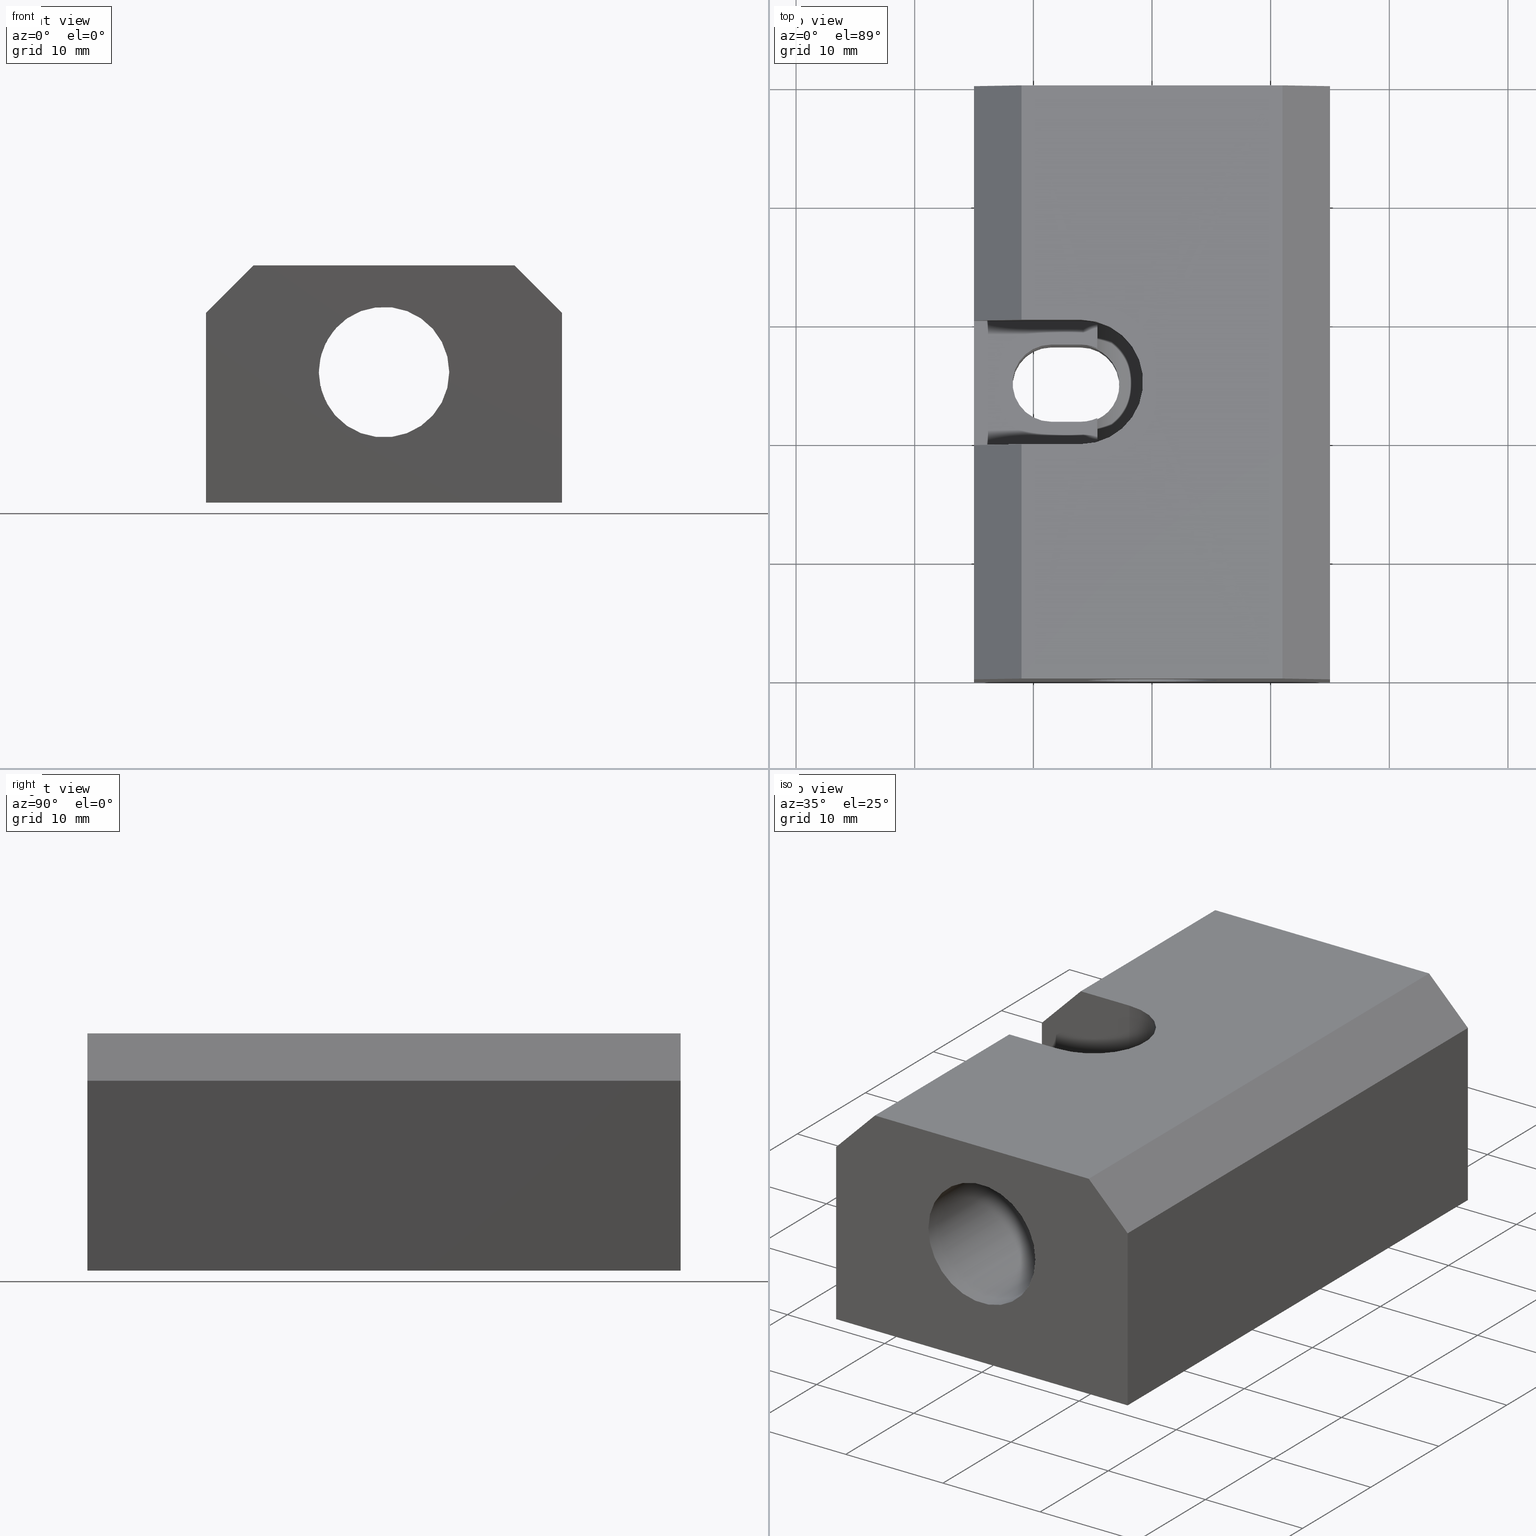
[diagram: canonical four-view strip — front | top / right | iso, engineering-drawing reading convention]
A machine part, canonical four-view strip (front | top / right | iso — engineering-drawing reading convention). The complete STEP part file that produces these views, byte-faithful:
ISO-10303-21;
HEADER;
/****************************************************************
 * Generated by software with PDE/Lib inside                    *
 * PDElib Version v4.4, created Mon 02/23/2004                  *
 * International Technegroup Inc. (www.iti-oh.com)              *
 ****************************************************************/
FILE_DESCRIPTION(('STEP AP203'),'2;1');
FILE_NAME('70PS00062.stp','2011-06-06T18:23:34',(''),(''),'2009.3.110','THINKDESIGN','');
FILE_SCHEMA(('CONFIG_CONTROL_DESIGN'));
ENDSEC;
DATA;
#2=CARTESIAN_POINT('',(14.999999999940201,1.541878E-012,0.0));
#3=DIRECTION('',(1.0,0.0,0.0));
#4=DIRECTION('',(0.0,-0.000000025809719,1.000000000000000));
#5=AXIS2_PLACEMENT_3D('',#2,#3,#4);
#6=PLANE('',#5);
#7=CARTESIAN_POINT('',(14.999999999940201,1.541878E-012,0.0));
#8=VERTEX_POINT('',#7);
#9=CARTESIAN_POINT('',(14.999999999939746,-0.000000412953966,15.999999999936193));
#10=VERTEX_POINT('',#9);
#11=CARTESIAN_POINT('',(14.999999999940201,1.541878E-012,0.0));
#12=DIRECTION('',(-2.842171E-014,-0.000000025809719,1.000000000000000));
#13=VECTOR('',#12,15.999999999936197);
#14=LINE('',#11,#13);
#15=EDGE_CURVE('',#8,#10,#14,.T.);
#16=ORIENTED_EDGE('',*,*,#15,.T.);
#17=CARTESIAN_POINT('',(14.999999999939746,-50.000000412953952,15.999998709457714));
#18=VERTEX_POINT('',#17);
#19=CARTESIAN_POINT('',(14.999999999939746,-0.000000412953966,15.999999999936193));
#20=DIRECTION('',(0.0,-1.000000000000000,-0.000000025809570));
#21=VECTOR('',#20,50.000000000000007);
#22=LINE('',#19,#21);
#23=EDGE_CURVE('',#10,#18,#22,.T.);
#24=ORIENTED_EDGE('',*,*,#23,.T.);
#25=CARTESIAN_POINT('',(14.999999999940201,-49.999999999998444,-0.000001290478480));
#26=VERTEX_POINT('',#25);
#27=CARTESIAN_POINT('',(14.999999999940201,-49.999999999998444,-0.000001290478480));
#28=DIRECTION('',(-2.842171E-014,-0.000000025809719,1.000000000000000));
#29=VECTOR('',#28,15.999999999936197);
#30=LINE('',#27,#29);
#31=EDGE_CURVE('',#26,#18,#30,.T.);
#32=ORIENTED_EDGE('',*,*,#31,.F.);
#33=CARTESIAN_POINT('',(14.999999999940201,1.541878E-012,0.0));
#34=DIRECTION('',(0.0,-1.000000000000000,-0.000000025809570));
#35=VECTOR('',#34,50.000000000000007);
#36=LINE('',#33,#35);
#37=EDGE_CURVE('',#8,#26,#36,.T.);
#38=ORIENTED_EDGE('',*,*,#37,.F.);
#39=EDGE_LOOP('',(#16,#24,#32,#38));
#40=FACE_OUTER_BOUND('',#39,.T.);
#41=ADVANCED_FACE('',(#40),#6,.T.);
#42=CARTESIAN_POINT('',(14.999999999939746,-0.000000412953966,15.999999999936193));
#43=DIRECTION('',(0.707106781186507,-0.000000018250122,0.707106781186588));
#44=DIRECTION('',(-0.707106781186588,-0.000000018250172,0.707106781186507));
#45=AXIS2_PLACEMENT_3D('',#42,#43,#44);
#46=PLANE('',#45);
#47=CARTESIAN_POINT('',(10.999999999955662,-0.000000516189850,19.999999999920746));
#48=VERTEX_POINT('',#47);
#49=CARTESIAN_POINT('',(14.999999999939746,-0.000000412953966,15.999999999936193));
#50=DIRECTION('',(-0.707106781186588,-0.000000018250172,0.707106781186507));
#51=VECTOR('',#50,5.656854249469551);
#52=LINE('',#49,#51);
#53=EDGE_CURVE('',#10,#48,#52,.T.);
#54=ORIENTED_EDGE('',*,*,#53,.T.);
#55=CARTESIAN_POINT('',(10.999999999955662,-50.000000516189836,19.999998709442266));
#56=VERTEX_POINT('',#55);
#57=CARTESIAN_POINT('',(10.999999999955662,-0.000000516189850,19.999999999920746));
#58=DIRECTION('',(0.0,-1.000000000000000,-0.000000025809569));
#59=VECTOR('',#58,50.000000000000007);
#60=LINE('',#57,#59);
#61=EDGE_CURVE('',#48,#56,#60,.T.);
#62=ORIENTED_EDGE('',*,*,#61,.T.);
#63=CARTESIAN_POINT('',(14.999999999939746,-50.000000412953952,15.999998709457714));
#64=DIRECTION('',(-0.707106781186588,-0.000000018250172,0.707106781186507));
#65=VECTOR('',#64,5.656854249469549);
#66=LINE('',#63,#65);
#67=EDGE_CURVE('',#18,#56,#66,.T.);
#68=ORIENTED_EDGE('',*,*,#67,.F.);
#69=ORIENTED_EDGE('',*,*,#23,.F.);
#70=EDGE_LOOP('',(#54,#62,#68,#69));
#71=FACE_OUTER_BOUND('',#70,.T.);
#72=ADVANCED_FACE('',(#71),#46,.T.);
#73=CARTESIAN_POINT('',(10.999999999955662,-0.000000516189850,19.999999999920746));
#74=DIRECTION('',(-1.614870E-016,-0.000000025809569,1.000000000000000));
#75=DIRECTION('',(-1.0,0.0,0.0));
#76=AXIS2_PLACEMENT_3D('',#73,#74,#75);
#77=PLANE('',#76);
#78=CARTESIAN_POINT('',(-10.999999999956572,-0.000000516189850,19.999999999920746));
#79=VERTEX_POINT('',#78);
#80=CARTESIAN_POINT('',(10.999999999955662,-0.000000516189850,19.999999999920746));
#81=DIRECTION('',(-1.0,0.0,0.0));
#82=VECTOR('',#81,21.999999999912234);
#83=LINE('',#80,#82);
#84=EDGE_CURVE('',#48,#79,#83,.T.);
#85=ORIENTED_EDGE('',*,*,#84,.T.);
#86=CARTESIAN_POINT('',(-10.999999999956572,-19.750000516315179,19.999999490181750));
#87=VERTEX_POINT('',#86);
#88=CARTESIAN_POINT('',(-10.999999999956572,-0.000000516189850,19.999999999920746));
#89=DIRECTION('',(0.0,-1.000000000000000,-0.000000025809569));
#90=VECTOR('',#89,19.750000000125336);
#91=LINE('',#88,#90);
#92=EDGE_CURVE('',#79,#87,#91,.T.);
#93=ORIENTED_EDGE('',*,*,#92,.T.);
#94=CARTESIAN_POINT('',(-5.999999999976581,-19.750000516315183,19.999999490181750));
#95=VERTEX_POINT('',#94);
#96=CARTESIAN_POINT('',(-5.999999999976581,-19.750000516315183,19.999999490181750));
#97=DIRECTION('',(-1.0,0.0,0.0));
#98=VECTOR('',#97,4.999999999979991);
#99=LINE('',#96,#98);
#100=EDGE_CURVE('',#95,#87,#99,.T.);
#101=ORIENTED_EDGE('',*,*,#100,.F.);
#102=CARTESIAN_POINT('',(-5.999999999975856,-30.250000516273747,19.999999219181262));
#103=VERTEX_POINT('',#102);
#104=CARTESIAN_POINT('',(-5.999999999975856,-25.000000516294467,19.999999354681506));
#105=DIRECTION('',(8.010470E-033,-0.000000025809570,1.000000000000000));
#106=DIRECTION('',(-1.0,-5.510130E-040,8.010470E-033));
#107=AXIS2_PLACEMENT_3D('',#104,#105,#106);
#108=CIRCLE('',#107,5.249999999979286);
#109=EDGE_CURVE('',#103,#95,#108,.T.);
#110=ORIENTED_EDGE('',*,*,#109,.F.);
#111=CARTESIAN_POINT('',(-10.999999999956572,-30.250000516273744,19.999999219181277));
#112=VERTEX_POINT('',#111);
#113=CARTESIAN_POINT('',(-10.999999999956572,-30.250000516273751,19.999999219181248));
#114=DIRECTION('',(1.0,0.0,0.0));
#115=VECTOR('',#114,4.999999999980716);
#116=LINE('',#113,#115);
#117=EDGE_CURVE('',#112,#103,#116,.T.);
#118=ORIENTED_EDGE('',*,*,#117,.F.);
#119=CARTESIAN_POINT('',(-10.999999999956572,-50.000000516189836,19.999998709442266));
#120=VERTEX_POINT('',#119);
#121=CARTESIAN_POINT('',(-10.999999999956572,-30.250000516273744,19.999999219181269));
#122=DIRECTION('',(0.0,-1.000000000000000,-0.000000025809569));
#123=VECTOR('',#122,19.749999999916106);
#124=LINE('',#121,#123);
#125=EDGE_CURVE('',#112,#120,#124,.T.);
#126=ORIENTED_EDGE('',*,*,#125,.T.);
#127=CARTESIAN_POINT('',(10.999999999955662,-50.000000516189836,19.999998709442266));
#128=DIRECTION('',(-1.0,0.0,0.0));
#129=VECTOR('',#128,21.999999999912234);
#130=LINE('',#127,#129);
#131=EDGE_CURVE('',#56,#120,#130,.T.);
#132=ORIENTED_EDGE('',*,*,#131,.F.);
#133=ORIENTED_EDGE('',*,*,#61,.F.);
#134=EDGE_LOOP('',(#85,#93,#101,#110,#118,#126,#132,#133));
#135=FACE_OUTER_BOUND('',#134,.T.);
#136=ADVANCED_FACE('',(#135),#77,.T.);
#137=CARTESIAN_POINT('',(-10.999999999956572,-0.000000516189850,19.999999999920746));
#138=DIRECTION('',(-0.707106781186628,-0.000000018250122,0.707106781186467));
#139=DIRECTION('',(-0.707106781186467,0.000000018249698,-0.707106781186628));
#140=AXIS2_PLACEMENT_3D('',#137,#138,#139);
#141=PLANE('',#140);
#142=CARTESIAN_POINT('',(-14.999999999940201,-0.000000412953966,15.999999999936193));
#143=VERTEX_POINT('',#142);
#144=CARTESIAN_POINT('',(-10.999999999956572,-0.000000516189850,19.999999999920746));
#145=DIRECTION('',(-0.707106781186467,0.000000018249698,-0.707106781186628));
#146=VECTOR('',#145,5.656854249469875);
#147=LINE('',#144,#146);
#148=EDGE_CURVE('',#79,#143,#147,.T.);
#149=ORIENTED_EDGE('',*,*,#148,.T.);
#150=CARTESIAN_POINT('',(-14.999999999940201,-19.750000413076904,15.999999490197197));
#151=VERTEX_POINT('',#150);
#152=CARTESIAN_POINT('',(-14.999999999940201,-0.000000412953966,15.999999999936193));
#153=DIRECTION('',(0.0,-1.000000000000000,-0.000000025809570));
#154=VECTOR('',#153,19.750000000122945);
#155=LINE('',#152,#154);
#156=EDGE_CURVE('',#143,#151,#155,.T.);
#157=ORIENTED_EDGE('',*,*,#156,.T.);
#158=CARTESIAN_POINT('',(-10.999999999956572,-19.750000516315179,19.999999490181750));
#159=DIRECTION('',(-0.707106781186466,0.000000018250121,-0.707106781186629));
#160=VECTOR('',#159,5.656854249469882);
#161=LINE('',#158,#160);
#162=EDGE_CURVE('',#87,#151,#161,.T.);
#163=ORIENTED_EDGE('',*,*,#162,.F.);
#164=ORIENTED_EDGE('',*,*,#92,.F.);
#165=EDGE_LOOP('',(#149,#157,#163,#164));
#166=FACE_OUTER_BOUND('',#165,.T.);
#167=ADVANCED_FACE('',(#166),#141,.T.);
#168=CARTESIAN_POINT('',(-10.999999999956572,-0.000000516189850,19.999999999920746));
#169=DIRECTION('',(-0.707106781186628,-0.000000018250122,0.707106781186467));
#170=DIRECTION('',(-0.707106781186467,0.000000018249698,-0.707106781186628));
#171=AXIS2_PLACEMENT_3D('',#168,#169,#170);
#172=PLANE('',#171);
#173=ORIENTED_EDGE('',*,*,#125,.F.);
#174=CARTESIAN_POINT('',(-14.999999999940201,-30.250000413035472,15.999999219196710));
#175=VERTEX_POINT('',#174);
#176=CARTESIAN_POINT('',(-10.999999999956572,-30.250000516273744,19.999999219181277));
#177=DIRECTION('',(-0.707106781186464,0.000000018250120,-0.707106781186630));
#178=VECTOR('',#177,5.656854249469893);
#179=LINE('',#176,#178);
#180=EDGE_CURVE('',#112,#175,#179,.T.);
#181=ORIENTED_EDGE('',*,*,#180,.T.);
#182=CARTESIAN_POINT('',(-14.999999999940201,-50.000000412953952,15.999998709457714));
#183=VERTEX_POINT('',#182);
#184=CARTESIAN_POINT('',(-14.999999999940201,-30.250000413035472,15.999999219196715));
#185=DIRECTION('',(0.0,-1.000000000000000,-0.000000025809570));
#186=VECTOR('',#185,19.749999999918494);
#187=LINE('',#184,#186);
#188=EDGE_CURVE('',#175,#183,#187,.T.);
#189=ORIENTED_EDGE('',*,*,#188,.T.);
#190=CARTESIAN_POINT('',(-10.999999999956572,-50.000000516189836,19.999998709442266));
#191=DIRECTION('',(-0.707106781186467,0.000000018249698,-0.707106781186628));
#192=VECTOR('',#191,5.656854249469873);
#193=LINE('',#190,#192);
#194=EDGE_CURVE('',#120,#183,#193,.T.);
#195=ORIENTED_EDGE('',*,*,#194,.F.);
#196=EDGE_LOOP('',(#173,#181,#189,#195));
#197=FACE_OUTER_BOUND('',#196,.T.);
#198=ADVANCED_FACE('',(#197),#172,.T.);
#199=CARTESIAN_POINT('',(-14.999999999940201,-0.000000412953966,15.999999999936193));
#200=DIRECTION('',(-1.0,0.0,0.0));
#201=DIRECTION('',(0.0,0.000000025809527,-1.000000000000000));
#202=AXIS2_PLACEMENT_3D('',#199,#200,#201);
#203=PLANE('',#202);
#204=CARTESIAN_POINT('',(-14.999999999940201,-1.534772E-012,0.0));
#205=VERTEX_POINT('',#204);
#206=CARTESIAN_POINT('',(-14.999999999940201,-0.000000412953966,15.999999999936193));
#207=DIRECTION('',(0.0,0.000000025809527,-1.000000000000000));
#208=VECTOR('',#207,15.999999999936200);
#209=LINE('',#206,#208);
#210=EDGE_CURVE('',#143,#205,#209,.T.);
#211=ORIENTED_EDGE('',*,*,#210,.T.);
#212=CARTESIAN_POINT('',(-14.999999999940201,-50.000000000001521,-0.000001290478480));
#213=VERTEX_POINT('',#212);
#214=CARTESIAN_POINT('',(-14.999999999940201,-1.534772E-012,0.0));
#215=DIRECTION('',(0.0,-1.000000000000000,-0.000000025809570));
#216=VECTOR('',#215,50.000000000000007);
#217=LINE('',#214,#216);
#218=EDGE_CURVE('',#205,#213,#217,.T.);
#219=ORIENTED_EDGE('',*,*,#218,.T.);
#220=CARTESIAN_POINT('',(-14.999999999940201,-50.000000412953952,15.999998709457714));
#221=DIRECTION('',(0.0,0.000000025809527,-1.000000000000000));
#222=VECTOR('',#221,15.999999999936200);
#223=LINE('',#220,#222);
#224=EDGE_CURVE('',#183,#213,#223,.T.);
#225=ORIENTED_EDGE('',*,*,#224,.F.);
#226=ORIENTED_EDGE('',*,*,#188,.F.);
#227=CARTESIAN_POINT('',(-14.999999999940201,-30.250000361416291,13.999997361700224));
#228=VERTEX_POINT('',#227);
#229=CARTESIAN_POINT('',(-14.999999999940201,-30.250000413035476,15.999999219196710));
#230=DIRECTION('',(0.0,0.000000025809569,-1.000000000000000));
#231=VECTOR('',#230,2.000001857496486);
#232=LINE('',#229,#231);
#233=EDGE_CURVE('',#175,#228,#232,.T.);
#234=ORIENTED_EDGE('',*,*,#233,.T.);
#235=CARTESIAN_POINT('',(-14.999999999940201,-19.750000361457722,13.999997632700712));
#236=VERTEX_POINT('',#235);
#237=CARTESIAN_POINT('',(-14.999999999940201,-19.750000361457722,13.999997632700712));
#238=DIRECTION('',(0.0,-1.000000000000000,-0.000000025809570));
#239=VECTOR('',#238,10.499999999958572);
#240=LINE('',#237,#239);
#241=EDGE_CURVE('',#236,#228,#240,.T.);
#242=ORIENTED_EDGE('',*,*,#241,.F.);
#243=CARTESIAN_POINT('',(-14.999999999940201,-19.750000413076908,15.999999490197197));
#244=DIRECTION('',(0.0,0.000000025809569,-1.000000000000000));
#245=VECTOR('',#244,2.000001857496486);
#246=LINE('',#243,#245);
#247=EDGE_CURVE('',#151,#236,#246,.T.);
#248=ORIENTED_EDGE('',*,*,#247,.F.);
#249=ORIENTED_EDGE('',*,*,#156,.F.);
#250=EDGE_LOOP('',(#211,#219,#225,#226,#234,#242,#248,#249));
#251=FACE_OUTER_BOUND('',#250,.T.);
#252=ADVANCED_FACE('',(#251),#203,.T.);
#253=CARTESIAN_POINT('',(-14.999999999940201,-1.534772E-012,0.0));
#254=DIRECTION('',(5.921286E-017,0.000000025809570,-1.000000000000000));
#255=DIRECTION('',(1.0,1.026372E-013,5.921551E-017));
#256=AXIS2_PLACEMENT_3D('',#253,#254,#255);
#257=PLANE('',#256);
#258=ORIENTED_EDGE('',*,*,#37,.T.);
#259=CARTESIAN_POINT('',(-14.999999999940201,-50.000000000001521,-0.000001290478480));
#260=DIRECTION('',(1.0,1.025550E-013,5.921635E-017));
#261=VECTOR('',#260,29.999999999880401);
#262=LINE('',#259,#261);
#263=EDGE_CURVE('',#213,#26,#262,.T.);
#264=ORIENTED_EDGE('',*,*,#263,.F.);
#265=ORIENTED_EDGE('',*,*,#218,.F.);
#266=CARTESIAN_POINT('',(-14.999999999940201,-1.534772E-012,0.0));
#267=DIRECTION('',(1.0,1.026372E-013,5.921635E-017));
#268=VECTOR('',#267,29.999999999880401);
#269=LINE('',#266,#268);
#270=EDGE_CURVE('',#205,#8,#269,.T.);
#271=ORIENTED_EDGE('',*,*,#270,.T.);
#272=EDGE_LOOP('',(#258,#264,#265,#271));
#273=FACE_OUTER_BOUND('',#272,.T.);
#274=CARTESIAN_POINT('',(-8.499999999966562,-21.750000000116923,-0.000000561358135));
#275=VERTEX_POINT('',#274);
#276=CARTESIAN_POINT('',(-8.499999999966562,-28.250000000089379,-0.000000729120345));
#277=VERTEX_POINT('',#276);
#278=CARTESIAN_POINT('',(-8.499999999966569,-25.000000000103149,-0.000000645239240));
#279=DIRECTION('',(-1.614870E-016,-0.000000025809569,1.000000000000000));
#280=DIRECTION('',(-1.366428E-016,1.000000000000000,0.000000025809569));
#281=AXIS2_PLACEMENT_3D('',#278,#279,#280);
#282=CIRCLE('',#281,3.249999999986224);
#283=EDGE_CURVE('',#275,#277,#282,.T.);
#284=ORIENTED_EDGE('',*,*,#283,.T.);
#285=CARTESIAN_POINT('',(-5.999999999976566,-28.250000000089372,-0.000000729120345));
#286=VERTEX_POINT('',#285);
#287=CARTESIAN_POINT('',(-8.499999999966562,-28.250000000089379,-0.000000729120345));
#288=DIRECTION('',(1.0,0.0,0.0));
#289=VECTOR('',#288,2.499999999989996);
#290=LINE('',#287,#289);
#291=EDGE_CURVE('',#277,#286,#290,.T.);
#292=ORIENTED_EDGE('',*,*,#291,.T.);
#293=CARTESIAN_POINT('',(-5.999999999976566,-21.750000000116927,-0.000000561358135));
#294=VERTEX_POINT('',#293);
#295=CARTESIAN_POINT('',(-5.999999999976573,-25.000000000103213,-0.000000645239240));
#296=DIRECTION('',(-1.614870E-016,-0.000000025809565,1.000000000000000));
#297=DIRECTION('',(-6.447783E-025,-1.000000000000000,-0.000000025809565));
#298=AXIS2_PLACEMENT_3D('',#295,#296,#297);
#299=CIRCLE('',#298,3.249999999986223);
#300=EDGE_CURVE('',#286,#294,#299,.T.);
#301=ORIENTED_EDGE('',*,*,#300,.T.);
#302=CARTESIAN_POINT('',(-8.499999999966562,-21.750000000116923,-0.000000561358135));
#303=DIRECTION('',(1.0,0.0,0.0));
#304=VECTOR('',#303,2.499999999989996);
#305=LINE('',#302,#304);
#306=EDGE_CURVE('',#275,#294,#305,.T.);
#307=ORIENTED_EDGE('',*,*,#306,.F.);
#308=EDGE_LOOP('',(#284,#292,#301,#307));
#309=FACE_BOUND('',#308,.T.);
#310=ADVANCED_FACE('',(#273,#309),#257,.T.);
#311=CARTESIAN_POINT('',(-18.000004730952014,0.000000051620809,-2.000004731022401));
#312=DIRECTION('',(0.0,-1.000000000000000,-0.000000025809570));
#313=DIRECTION('',(1.0,0.0,0.0));
#314=AXIS2_PLACEMENT_3D('',#311,#312,#313);
#315=PLANE('',#314);
#316=ORIENTED_EDGE('',*,*,#270,.F.);
#317=ORIENTED_EDGE('',*,*,#210,.F.);
#318=ORIENTED_EDGE('',*,*,#148,.F.);
#319=ORIENTED_EDGE('',*,*,#84,.F.);
#320=ORIENTED_EDGE('',*,*,#53,.F.);
#321=ORIENTED_EDGE('',*,*,#15,.F.);
#322=EDGE_LOOP('',(#316,#317,#318,#319,#320,#321));
#323=FACE_OUTER_BOUND('',#322,.T.);
#324=CARTESIAN_POINT('',(-5.500000000000227,-0.000000283903717,10.999999999956216));
#325=VERTEX_POINT('',#324);
#326=CARTESIAN_POINT('',(5.499999999999773,-0.000000283903717,10.999999999956216));
#327=VERTEX_POINT('',#326);
#328=CARTESIAN_POINT('',(-2.273737E-013,-0.000000283903717,10.999999999956216));
#329=DIRECTION('',(0.0,1.000000000000000,0.000000025809570));
#330=DIRECTION('',(1.0,0.0,0.0));
#331=AXIS2_PLACEMENT_3D('',#328,#329,#330);
#332=CIRCLE('',#331,5.500000000000000);
#333=EDGE_CURVE('',#325,#327,#332,.T.);
#334=ORIENTED_EDGE('',*,*,#333,.F.);
#335=CARTESIAN_POINT('',(-2.273737E-013,-0.000000283903717,10.999999999956216));
#336=DIRECTION('',(0.0,1.000000000000000,0.000000025809570));
#337=DIRECTION('',(1.0,0.0,0.0));
#338=AXIS2_PLACEMENT_3D('',#335,#336,#337);
#339=CIRCLE('',#338,5.500000000000000);
#340=EDGE_CURVE('',#327,#325,#339,.T.);
#341=ORIENTED_EDGE('',*,*,#340,.F.);
#342=EDGE_LOOP('',(#334,#341));
#343=FACE_BOUND('',#342,.T.);
#344=ADVANCED_FACE('',(#323,#343),#315,.F.);
#345=CARTESIAN_POINT('',(-18.000004730952014,-49.999999948379184,-2.000006021500880));
#346=DIRECTION('',(0.0,-1.000000000000000,-0.000000025809570));
#347=DIRECTION('',(1.0,0.0,0.0));
#348=AXIS2_PLACEMENT_3D('',#345,#346,#347);
#349=PLANE('',#348);
#350=ORIENTED_EDGE('',*,*,#31,.T.);
#351=ORIENTED_EDGE('',*,*,#67,.T.);
#352=ORIENTED_EDGE('',*,*,#131,.T.);
#353=ORIENTED_EDGE('',*,*,#194,.T.);
#354=ORIENTED_EDGE('',*,*,#224,.T.);
#355=ORIENTED_EDGE('',*,*,#263,.T.);
#356=EDGE_LOOP('',(#350,#351,#352,#353,#354,#355));
#357=FACE_OUTER_BOUND('',#356,.T.);
#358=CARTESIAN_POINT('',(-5.500000000000227,-50.000000283903717,10.999998709477737));
#359=VERTEX_POINT('',#358);
#360=CARTESIAN_POINT('',(5.499999999999773,-50.000000283903709,10.999998709477737));
#361=VERTEX_POINT('',#360);
#362=CARTESIAN_POINT('',(-2.273737E-013,-50.000000283903717,10.999998709477737));
#363=DIRECTION('',(0.0,-1.000000000000000,-0.000000025809570));
#364=DIRECTION('',(1.0,0.0,0.0));
#365=AXIS2_PLACEMENT_3D('',#362,#363,#364);
#366=CIRCLE('',#365,5.500000000000000);
#367=EDGE_CURVE('',#359,#361,#366,.T.);
#368=ORIENTED_EDGE('',*,*,#367,.F.);
#369=CARTESIAN_POINT('',(-2.273737E-013,-50.000000283903717,10.999998709477737));
#370=DIRECTION('',(0.0,-1.000000000000000,-0.000000025809570));
#371=DIRECTION('',(1.0,0.0,0.0));
#372=AXIS2_PLACEMENT_3D('',#369,#370,#371);
#373=CIRCLE('',#372,5.500000000000000);
#374=EDGE_CURVE('',#361,#359,#373,.T.);
#375=ORIENTED_EDGE('',*,*,#374,.F.);
#376=EDGE_LOOP('',(#368,#375));
#377=FACE_BOUND('',#376,.T.);
#378=ADVANCED_FACE('',(#357,#377),#349,.T.);
#379=CARTESIAN_POINT('',(-2.273737E-013,-50.000000283903709,10.999998709477737));
#380=DIRECTION('',(0.0,-1.000000000000000,-0.000000025809570));
#381=DIRECTION('',(1.0,0.0,0.0));
#382=AXIS2_PLACEMENT_3D('',#379,#380,#381);
#383=CYLINDRICAL_SURFACE('',#382,5.500000000000000);
#384=CARTESIAN_POINT('',(5.499999999999773,-50.000000283903709,10.999998709477737));
#385=DIRECTION('',(0.0,1.000000000000000,0.000000025809570));
#386=VECTOR('',#385,50.000000000000007);
#387=LINE('',#384,#386);
#388=EDGE_CURVE('',#361,#327,#387,.T.);
#389=ORIENTED_EDGE('',*,*,#388,.T.);
#390=ORIENTED_EDGE('',*,*,#340,.T.);
#391=ORIENTED_EDGE('',*,*,#333,.T.);
#392=ORIENTED_EDGE('',*,*,#388,.F.);
#393=ORIENTED_EDGE('',*,*,#374,.T.);
#394=ORIENTED_EDGE('',*,*,#367,.T.);
#395=EDGE_LOOP('',(#389,#390,#391,#392,#393,#394));
#396=FACE_OUTER_BOUND('',#395,.T.);
#397=CARTESIAN_POINT('',(-4.609773437501850,-30.062585679708111,13.999997366537329));
#398=VERTEX_POINT('',#397);
#399=CARTESIAN_POINT('',(-4.609773437501850,-19.937415043165885,13.999997627863635));
#400=VERTEX_POINT('',#399);
#401=CARTESIAN_POINT('',(-4.609773437501850,-30.062585679708111,13.999997366537329));
#402=CARTESIAN_POINT('',(-4.513460181953690,-30.036137290510446,14.147991554555574));
#403=CARTESIAN_POINT('',(-4.220790235840020,-29.947418045118955,14.553468269196244));
#404=CARTESIAN_POINT('',(-3.712541596371437,-29.742296238767679,15.085618809378914));
#405=CARTESIAN_POINT('',(-3.114649202484515,-29.402108529464961,15.549017026104437));
#406=CARTESIAN_POINT('',(-2.483759828348276,-28.930618164272921,15.926564549909344));
#407=CARTESIAN_POINT('',(-1.767837856828265,-28.185364174737270,16.228236571129685));
#408=CARTESIAN_POINT('',(-1.150660020495671,-27.140082904808416,16.385668423296934));
#409=CARTESIAN_POINT('',(-0.785689032112060,-25.930406252972858,16.444779878449481));
#410=CARTESIAN_POINT('',(-0.707543327265157,-24.685416119282785,16.453911384761710));
#411=CARTESIAN_POINT('',(-0.918869546949551,-23.525267177270564,16.426312849805626));
#412=CARTESIAN_POINT('',(-1.378038843916933,-22.423870730114388,16.333463462370844));
#413=CARTESIAN_POINT('',(-2.045460668463257,-21.473597313919132,16.131383279137452));
#414=CARTESIAN_POINT('',(-2.944136195870328,-20.682598142708194,15.686867443042757));
#415=CARTESIAN_POINT('',(-3.739292116957159,-20.241241327239621,15.073474904552356));
#416=CARTESIAN_POINT('',(-4.283558660717254,-20.033197983366293,14.468522934388290));
#417=CARTESIAN_POINT('',(-4.523825036563288,-19.961017167324087,14.132065260907851));
#418=CARTESIAN_POINT('',(-4.609773437501850,-19.937415043165885,13.999997627863635));
#419=B_SPLINE_CURVE_WITH_KNOTS('',3,(#401,#402,#403,#404,#405,#406,#407,#408,#409,#410,#411,#412,#413,#414,#415,#416,#417,#418),.UNSPECIFIED.,.F.,.U.,(4,1,1,1,1,1,1,1,1,1,1,1,1,1,1,4),(0.0,0.535903650385525,1.520753748540064,2.277790965733574,3.013580933543508,4.130291299700574,5.480009836771406,6.648909124830340,7.900542887177067,9.195462676804930,10.159924569277472,11.474724584485887,12.695804728975558,13.949183433871301,14.728182024343361,15.206363714230307),.UNSPECIFIED.);
#420=EDGE_CURVE('',#398,#400,#419,.T.);
#421=ORIENTED_EDGE('',*,*,#420,.T.);
#422=CARTESIAN_POINT('',(-4.609773437501829,-22.062353325985043,13.999997573019911));
#423=VERTEX_POINT('',#422);
#424=CARTESIAN_POINT('',(-4.609773437501829,-19.937415043165885,13.999997627863658));
#425=DIRECTION('',(0.0,-1.000000000000000,-0.000000025809569));
#426=VECTOR('',#425,2.124938282819159);
#427=LINE('',#424,#426);
#428=EDGE_CURVE('',#400,#423,#427,.T.);
#429=ORIENTED_EDGE('',*,*,#428,.T.);
#430=CARTESIAN_POINT('',(-4.609773437501829,-27.937647396889101,13.999997421381110));
#431=VERTEX_POINT('',#430);
#432=CARTESIAN_POINT('',(-4.609773437501829,-22.062353325985043,13.999997573019883));
#433=CARTESIAN_POINT('',(-4.788263599702290,-21.977883754783463,13.725731002526103));
#434=CARTESIAN_POINT('',(-5.143091415717805,-21.853931581827435,13.057910030906015));
#435=CARTESIAN_POINT('',(-5.481892480022786,-21.789960051724176,11.883741003853089));
#436=CARTESIAN_POINT('',(-5.532152390129646,-21.783794728983601,10.679934247909458));
#437=CARTESIAN_POINT('',(-5.361502416536013,-21.810851669650617,9.682340472502759));
#438=CARTESIAN_POINT('',(-5.104584866082114,-21.871470117086545,8.907754881217841));
#439=CARTESIAN_POINT('',(-4.725233061583737,-21.996699149038989,8.132663285749189));
#440=CARTESIAN_POINT('',(-4.250203308214360,-22.236048741602421,7.479350807547505));
#441=CARTESIAN_POINT('',(-3.763803473248693,-22.622261942646347,6.977883773550190));
#442=CARTESIAN_POINT('',(-3.387983301695172,-23.035169203226090,6.659368943934666));
#443=CARTESIAN_POINT('',(-3.064811055950969,-23.559206003872809,6.429203958404870));
#444=CARTESIAN_POINT('',(-2.854463167473412,-24.116238130605105,6.297724161624458));
#445=CARTESIAN_POINT('',(-2.746042982614590,-24.705207575910471,6.234481355313889));
#446=CARTESIAN_POINT('',(-2.743873748989699,-25.303082505036954,6.233291118597109));
#447=CARTESIAN_POINT('',(-2.855114406123420,-25.882505453585559,6.297909482004471));
#448=CARTESIAN_POINT('',(-3.062309093043183,-26.427673864180747,6.428483396680903));
#449=CARTESIAN_POINT('',(-3.363310957725517,-26.933452218319552,6.640272782392671));
#450=CARTESIAN_POINT('',(-3.758613139180781,-27.376606610942815,6.970967800990152));
#451=CARTESIAN_POINT('',(-4.161914411719572,-27.693258785675702,7.388499641556123));
#452=CARTESIAN_POINT('',(-4.600024369812992,-27.947281829667791,7.952250867919872));
#453=CARTESIAN_POINT('',(-4.978643072542013,-28.092454490443981,8.610773096467838));
#454=CARTESIAN_POINT('',(-5.269470524391295,-28.169311594800494,9.369971124165360));
#455=CARTESIAN_POINT('',(-5.428881459401609,-28.200016512984540,10.037064194057947));
#456=CARTESIAN_POINT('',(-5.507863046881987,-28.212559226293276,10.733918247193898));
#457=CARTESIAN_POINT('',(-5.499316819321749,-28.211308027075830,11.468826849348588));
#458=CARTESIAN_POINT('',(-5.361797633498142,-28.188868364695690,12.340693738825138));
#459=CARTESIAN_POINT('',(-5.066783908610304,-28.122076912929671,13.209893774435656));
#460=CARTESIAN_POINT('',(-4.762588121235950,-28.009966164969835,13.765183584145134));
#461=CARTESIAN_POINT('',(-4.609773437501829,-27.937647396889101,13.999997421381096));
#462=B_SPLINE_CURVE_WITH_KNOTS('',3,(#432,#433,#434,#435,#436,#437,#438,#439,#440,#441,#442,#443,#444,#445,#446,#447,#448,#449,#450,#451,#452,#453,#454,#455,#456,#457,#458,#459,#460,#461),.UNSPECIFIED.,.F.,.U.,(4,1,1,1,1,1,1,1,1,1,1,1,1,1,1,1,1,1,1,1,1,1,1,1,1,1,1,4),(0.0,1.016023688939245,2.280855082656430,3.645866141126857,4.602173098362558,5.306173924898563,6.094943367063977,7.209333586070347,7.806532107112486,8.478334851399135,9.125123933614480,9.765049062831471,10.295561130368581,10.923540775670309,11.547478261184173,12.065101670802296,12.708673520443966,13.411480095039916,14.089208069448372,14.681341413408253,15.677142517959735,16.393778057929445,17.125160270444688,17.731853751351093,18.494745320622812,19.324616775729037,20.372712758380935,21.242122896570724),.UNSPECIFIED.);
#463=EDGE_CURVE('',#423,#431,#462,.T.);
#464=ORIENTED_EDGE('',*,*,#463,.T.);
#465=CARTESIAN_POINT('',(-4.609773437501829,-27.937647396889101,13.999997421381105));
#466=DIRECTION('',(0.0,-1.000000000000000,-0.000000025809569));
#467=VECTOR('',#466,2.124938282819010);
#468=LINE('',#465,#467);
#469=EDGE_CURVE('',#431,#398,#468,.T.);
#470=ORIENTED_EDGE('',*,*,#469,.T.);
#471=EDGE_LOOP('',(#421,#429,#464,#470));
#472=FACE_BOUND('',#471,.T.);
#473=ADVANCED_FACE('',(#396,#472),#383,.F.);
#474=CARTESIAN_POINT('',(-14.999999999940201,-30.250000516273751,19.999999219181248));
#475=DIRECTION('',(0.0,1.000000000000000,0.000000025809569));
#476=DIRECTION('',(1.0,0.0,0.0));
#477=AXIS2_PLACEMENT_3D('',#474,#475,#476);
#478=PLANE('',#477);
#479=ORIENTED_EDGE('',*,*,#117,.T.);
#480=CARTESIAN_POINT('',(-5.999999999975856,-30.250000361416284,13.999997361700238));
#481=VERTEX_POINT('',#480);
#482=CARTESIAN_POINT('',(-5.999999999975856,-30.250000516273747,19.999999219181262));
#483=DIRECTION('',(0.0,0.000000025809569,-1.000000000000000));
#484=VECTOR('',#483,6.000001857481026);
#485=LINE('',#482,#484);
#486=EDGE_CURVE('',#103,#481,#485,.T.);
#487=ORIENTED_EDGE('',*,*,#486,.T.);
#488=CARTESIAN_POINT('',(-14.999999999940201,-30.250000361416291,13.999997361700224));
#489=DIRECTION('',(1.0,0.0,0.0));
#490=VECTOR('',#489,8.999999999964345);
#491=LINE('',#488,#490);
#492=EDGE_CURVE('',#228,#481,#491,.T.);
#493=ORIENTED_EDGE('',*,*,#492,.F.);
#494=ORIENTED_EDGE('',*,*,#233,.F.);
#495=ORIENTED_EDGE('',*,*,#180,.F.);
#496=EDGE_LOOP('',(#479,#487,#493,#494,#495));
#497=FACE_OUTER_BOUND('',#496,.T.);
#498=ADVANCED_FACE('',(#497),#478,.T.);
#499=CARTESIAN_POINT('',(-5.999999999975856,-25.000000516294463,19.999999354681506));
#500=DIRECTION('',(8.010470E-033,-0.000000025809570,1.000000000000000));
#501=DIRECTION('',(-1.0,-5.510130E-040,8.010470E-033));
#502=AXIS2_PLACEMENT_3D('',#499,#500,#501);
#503=CYLINDRICAL_SURFACE('',#502,5.249999999979286);
#504=ORIENTED_EDGE('',*,*,#109,.T.);
#505=CARTESIAN_POINT('',(-5.999999999976581,-19.750000361457722,13.999997632700740));
#506=VERTEX_POINT('',#505);
#507=CARTESIAN_POINT('',(-5.999999999976581,-19.750000516315183,19.999999490181750));
#508=DIRECTION('',(0.0,0.000000025809569,-1.000000000000000));
#509=VECTOR('',#508,6.000001857481012);
#510=LINE('',#507,#509);
#511=EDGE_CURVE('',#95,#506,#510,.T.);
#512=ORIENTED_EDGE('',*,*,#511,.T.);
#513=CARTESIAN_POINT('',(-5.999999999975856,-25.000000361437003,13.999997497200480));
#514=DIRECTION('',(8.010470E-033,-0.000000025809570,1.000000000000000));
#515=DIRECTION('',(-1.0,-9.183550E-040,8.010470E-033));
#516=AXIS2_PLACEMENT_3D('',#513,#514,#515);
#517=CIRCLE('',#516,5.249999999979286);
#518=EDGE_CURVE('',#400,#506,#517,.T.);
#519=ORIENTED_EDGE('',*,*,#518,.F.);
#520=ORIENTED_EDGE('',*,*,#420,.F.);
#521=CARTESIAN_POINT('',(-5.999999999975856,-25.000000361437003,13.999997497200480));
#522=DIRECTION('',(8.010470E-033,-0.000000025809570,1.000000000000000));
#523=DIRECTION('',(-1.0,-9.183550E-040,8.010470E-033));
#524=AXIS2_PLACEMENT_3D('',#521,#522,#523);
#525=CIRCLE('',#524,5.249999999979286);
#526=EDGE_CURVE('',#481,#398,#525,.T.);
#527=ORIENTED_EDGE('',*,*,#526,.F.);
#528=ORIENTED_EDGE('',*,*,#486,.F.);
#529=EDGE_LOOP('',(#504,#512,#519,#520,#527,#528));
#530=FACE_OUTER_BOUND('',#529,.T.);
#531=ADVANCED_FACE('',(#530),#503,.F.);
#532=CARTESIAN_POINT('',(-5.999999999976581,-19.750000516315183,19.999999490181750));
#533=DIRECTION('',(0.0,-1.000000000000000,-0.000000025809569));
#534=DIRECTION('',(-1.0,0.0,0.0));
#535=AXIS2_PLACEMENT_3D('',#532,#533,#534);
#536=PLANE('',#535);
#537=ORIENTED_EDGE('',*,*,#100,.T.);
#538=ORIENTED_EDGE('',*,*,#162,.T.);
#539=ORIENTED_EDGE('',*,*,#247,.T.);
#540=CARTESIAN_POINT('',(-5.999999999976581,-19.750000361457722,13.999997632700742));
#541=DIRECTION('',(-1.0,0.0,0.0));
#542=VECTOR('',#541,8.999999999963620);
#543=LINE('',#540,#542);
#544=EDGE_CURVE('',#506,#236,#543,.T.);
#545=ORIENTED_EDGE('',*,*,#544,.F.);
#546=ORIENTED_EDGE('',*,*,#511,.F.);
#547=EDGE_LOOP('',(#537,#538,#539,#545,#546));
#548=FACE_OUTER_BOUND('',#547,.T.);
#549=ADVANCED_FACE('',(#548),#536,.T.);
#550=CARTESIAN_POINT('',(0.675004724426131,-18.699995637009710,13.999997659800911));
#551=DIRECTION('',(-1.614870E-016,-0.000000025809569,1.000000000000000));
#552=DIRECTION('',(-1.0,0.0,0.0));
#553=AXIS2_PLACEMENT_3D('',#550,#551,#552);
#554=PLANE('',#553);
#555=ORIENTED_EDGE('',*,*,#492,.T.);
#556=ORIENTED_EDGE('',*,*,#526,.T.);
#557=ORIENTED_EDGE('',*,*,#469,.F.);
#558=CARTESIAN_POINT('',(-5.999999999976573,-28.250000361423297,13.999997413319377));
#559=VERTEX_POINT('',#558);
#560=CARTESIAN_POINT('',(-5.999999999976573,-25.000000361437078,13.999997497200466));
#561=DIRECTION('',(-1.614870E-016,-0.000000025809565,1.000000000000000));
#562=DIRECTION('',(-6.447783E-025,-1.000000000000000,-0.000000025809565));
#563=AXIS2_PLACEMENT_3D('',#560,#561,#562);
#564=CIRCLE('',#563,3.249999999986223);
#565=EDGE_CURVE('',#559,#431,#564,.T.);
#566=ORIENTED_EDGE('',*,*,#565,.F.);
#567=CARTESIAN_POINT('',(-8.499999999966569,-28.250000361423300,13.999997413319377));
#568=VERTEX_POINT('',#567);
#569=CARTESIAN_POINT('',(-8.499999999966569,-28.250000361423300,13.999997413319377));
#570=DIRECTION('',(1.0,0.0,0.0));
#571=VECTOR('',#570,2.499999999989996);
#572=LINE('',#569,#571);
#573=EDGE_CURVE('',#568,#559,#572,.T.);
#574=ORIENTED_EDGE('',*,*,#573,.F.);
#575=CARTESIAN_POINT('',(-8.499999999966569,-21.750000361450848,13.999997581081587));
#576=VERTEX_POINT('',#575);
#577=CARTESIAN_POINT('',(-8.499999999966569,-25.000000361437074,13.999997497200480));
#578=DIRECTION('',(-1.614870E-016,-0.000000025809569,1.000000000000000));
#579=DIRECTION('',(-1.366428E-016,1.000000000000000,0.000000025809569));
#580=AXIS2_PLACEMENT_3D('',#577,#578,#579);
#581=CIRCLE('',#580,3.249999999986224);
#582=EDGE_CURVE('',#576,#568,#581,.T.);
#583=ORIENTED_EDGE('',*,*,#582,.F.);
#584=CARTESIAN_POINT('',(-5.999999999976573,-21.750000361450848,13.999997581081601));
#585=VERTEX_POINT('',#584);
#586=CARTESIAN_POINT('',(-5.999999999976573,-21.750000361450848,13.999997581081601));
#587=DIRECTION('',(-1.0,0.0,0.0));
#588=VECTOR('',#587,2.499999999989996);
#589=LINE('',#586,#588);
#590=EDGE_CURVE('',#585,#576,#589,.T.);
#591=ORIENTED_EDGE('',*,*,#590,.F.);
#592=CARTESIAN_POINT('',(-5.999999999976573,-25.000000361437078,13.999997497200466));
#593=DIRECTION('',(-1.614870E-016,-0.000000025809565,1.000000000000000));
#594=DIRECTION('',(-6.447783E-025,-1.000000000000000,-0.000000025809565));
#595=AXIS2_PLACEMENT_3D('',#592,#593,#594);
#596=CIRCLE('',#595,3.249999999986223);
#597=EDGE_CURVE('',#423,#585,#596,.T.);
#598=ORIENTED_EDGE('',*,*,#597,.F.);
#599=ORIENTED_EDGE('',*,*,#428,.F.);
#600=ORIENTED_EDGE('',*,*,#518,.T.);
#601=ORIENTED_EDGE('',*,*,#544,.T.);
#602=ORIENTED_EDGE('',*,*,#241,.T.);
#603=EDGE_LOOP('',(#555,#556,#557,#566,#574,#583,#591,#598,#599,#600,#601,#602));
#604=FACE_OUTER_BOUND('',#603,.T.);
#605=ADVANCED_FACE('',(#604),#554,.T.);
#606=CARTESIAN_POINT('',(-8.499999999966569,-25.000000361437070,13.999997497200482));
#607=DIRECTION('',(-1.614870E-016,-0.000000025809569,1.000000000000000));
#608=DIRECTION('',(-1.366428E-016,1.000000000000000,0.000000025809569));
#609=AXIS2_PLACEMENT_3D('',#606,#607,#608);
#610=CYLINDRICAL_SURFACE('',#609,3.249999999986224);
#611=CARTESIAN_POINT('',(-8.499999999966569,-28.250000361423300,13.999997413319377));
#612=DIRECTION('',(3.806479E-016,0.000000025809569,-1.000000000000000));
#613=VECTOR('',#612,13.999998142439727);
#614=LINE('',#611,#613);
#615=EDGE_CURVE('',#568,#277,#614,.T.);
#616=ORIENTED_EDGE('',*,*,#615,.T.);
#617=ORIENTED_EDGE('',*,*,#283,.F.);
#618=CARTESIAN_POINT('',(-8.499999999966569,-21.750000361450848,13.999997581081587));
#619=DIRECTION('',(3.806479E-016,0.000000025809569,-1.000000000000000));
#620=VECTOR('',#619,13.999998142439727);
#621=LINE('',#618,#620);
#622=EDGE_CURVE('',#576,#275,#621,.T.);
#623=ORIENTED_EDGE('',*,*,#622,.F.);
#624=ORIENTED_EDGE('',*,*,#582,.T.);
#625=EDGE_LOOP('',(#616,#617,#623,#624));
#626=FACE_OUTER_BOUND('',#625,.T.);
#627=ADVANCED_FACE('',(#626),#610,.F.);
#628=CARTESIAN_POINT('',(-8.499999999966569,-28.250000361423300,13.999997413319377));
#629=DIRECTION('',(0.0,1.000000000000000,0.000000025809569));
#630=DIRECTION('',(1.0,0.0,0.0));
#631=AXIS2_PLACEMENT_3D('',#628,#629,#630);
#632=PLANE('',#631);
#633=ORIENTED_EDGE('',*,*,#573,.T.);
#634=CARTESIAN_POINT('',(-5.999999999976573,-28.250000361423297,13.999997413319377));
#635=DIRECTION('',(3.172066E-016,0.000000025809569,-1.000000000000000));
#636=VECTOR('',#635,13.999998142439726);
#637=LINE('',#634,#636);
#638=EDGE_CURVE('',#559,#286,#637,.T.);
#639=ORIENTED_EDGE('',*,*,#638,.T.);
#640=ORIENTED_EDGE('',*,*,#291,.F.);
#641=ORIENTED_EDGE('',*,*,#615,.F.);
#642=EDGE_LOOP('',(#633,#639,#640,#641));
#643=FACE_OUTER_BOUND('',#642,.T.);
#644=ADVANCED_FACE('',(#643),#632,.T.);
#645=CARTESIAN_POINT('',(-5.999999999976573,-25.000000361437074,13.999997497200468));
#646=DIRECTION('',(-1.614870E-016,-0.000000025809565,1.000000000000000));
#647=DIRECTION('',(-6.447783E-025,-1.000000000000000,-0.000000025809565));
#648=AXIS2_PLACEMENT_3D('',#645,#646,#647);
#649=CYLINDRICAL_SURFACE('',#648,3.249999999986223);
#650=ORIENTED_EDGE('',*,*,#565,.T.);
#651=ORIENTED_EDGE('',*,*,#463,.F.);
#652=ORIENTED_EDGE('',*,*,#597,.T.);
#653=CARTESIAN_POINT('',(-5.999999999976573,-21.750000361450848,13.999997581081601));
#654=DIRECTION('',(3.172066E-016,0.000000025809569,-1.000000000000000));
#655=VECTOR('',#654,13.999998142439740);
#656=LINE('',#653,#655);
#657=EDGE_CURVE('',#585,#294,#656,.T.);
#658=ORIENTED_EDGE('',*,*,#657,.T.);
#659=ORIENTED_EDGE('',*,*,#300,.F.);
#660=ORIENTED_EDGE('',*,*,#638,.F.);
#661=EDGE_LOOP('',(#650,#651,#652,#658,#659,#660));
#662=FACE_OUTER_BOUND('',#661,.T.);
#663=ADVANCED_FACE('',(#662),#649,.F.);
#664=CARTESIAN_POINT('',(-5.999999999976573,-21.750000361450848,13.999997581081601));
#665=DIRECTION('',(0.0,-1.000000000000000,-0.000000025809569));
#666=DIRECTION('',(-1.0,0.0,0.0));
#667=AXIS2_PLACEMENT_3D('',#664,#665,#666);
#668=PLANE('',#667);
#669=ORIENTED_EDGE('',*,*,#622,.T.);
#670=ORIENTED_EDGE('',*,*,#306,.T.);
#671=ORIENTED_EDGE('',*,*,#657,.F.);
#672=ORIENTED_EDGE('',*,*,#590,.T.);
#673=EDGE_LOOP('',(#669,#670,#671,#672));
#674=FACE_OUTER_BOUND('',#673,.T.);
#675=ADVANCED_FACE('',(#674),#668,.T.);
#676=CLOSED_SHELL('',(#41,#72,#136,#167,#198,#252,#310,#344,#378,#473,#498,#531,#549,#605,#627,#644,#663,#675));
#677=MANIFOLD_SOLID_BREP('',#676);
#683=(NAMED_UNIT(*)PLANE_ANGLE_UNIT()SI_UNIT($,.RADIAN.));
#684=DIMENSIONAL_EXPONENTS(0.0,0.0,0.0,0.0,0.0,0.0,0.0);
#685=PLANE_ANGLE_MEASURE_WITH_UNIT(PLANE_ANGLE_MEASURE(0.017453292500000),#683);
#689=(CONVERSION_BASED_UNIT('DEGREE',#685)NAMED_UNIT(#684)PLANE_ANGLE_UNIT());
#693=(NAMED_UNIT(*)SI_UNIT($,.STERADIAN.)SOLID_ANGLE_UNIT());
#697=(LENGTH_UNIT()NAMED_UNIT(*)SI_UNIT(.MILLI.,.METRE.));
#699=UNCERTAINTY_MEASURE_WITH_UNIT(LENGTH_MEASURE(0.001000000000000),#697,'DISTANCE_ACCURACY_VALUE','');
#701=(GEOMETRIC_REPRESENTATION_CONTEXT(3)GLOBAL_UNCERTAINTY_ASSIGNED_CONTEXT((#699))GLOBAL_UNIT_ASSIGNED_CONTEXT((#689,#693,#697))REPRESENTATION_CONTEXT('thinkdesign','2009.3.110'));
#702=ADVANCED_BREP_SHAPE_REPRESENTATION('',(#677),#701);
#703=APPLICATION_CONTEXT('configuration controlled 3D designs of mechanical parts and assemblies');
#704=APPLICATION_PROTOCOL_DEFINITION('International Standard','config_control_design',1995,#703);
#705=MECHANICAL_CONTEXT('None',#703,'mechanical');
#706=PRODUCT('None','None','None',(#705));
#707=PRODUCT_RELATED_PRODUCT_CATEGORY('detail',$,(#706));
#708=PRODUCT_CATEGORY('part',$);
#709=PRODUCT_CATEGORY_RELATIONSHIP('None','None',#708,#707);
#710=PERSON('PERSON1','None','None',$,$,$);
#711=ORGANIZATION('','None','None');
#712=PERSON_AND_ORGANIZATION(#710,#711);
#713=PERSON_AND_ORGANIZATION_ROLE('design_owner');
#714=CC_DESIGN_PERSON_AND_ORGANIZATION_ASSIGNMENT(#712,#713,(#706));
#715=PRODUCT_DEFINITION_FORMATION_WITH_SPECIFIED_SOURCE('None','None',#706,.NOT_KNOWN.);
#716=PERSON('PERSON2','None','None',$,$,$);
#717=ORGANIZATION('','None','None');
#718=PERSON_AND_ORGANIZATION(#716,#717);
#719=PERSON_AND_ORGANIZATION_ROLE('creator');
#720=CC_DESIGN_PERSON_AND_ORGANIZATION_ASSIGNMENT(#718,#719,(#715));
#721=PERSON('PERSON3','None','None',$,$,$);
#722=ORGANIZATION('','None','None');
#723=PERSON_AND_ORGANIZATION(#721,#722);
#724=PERSON_AND_ORGANIZATION_ROLE('part_supplier');
#725=CC_DESIGN_PERSON_AND_ORGANIZATION_ASSIGNMENT(#723,#724,(#715));
#726=APPROVAL_STATUS('approved');
#727=APPROVAL(#726,'None');
#728=PERSON('PERSON4','None','None',$,$,$);
#729=ORGANIZATION('','None','None');
#730=PERSON_AND_ORGANIZATION(#728,#729);
#731=APPROVAL_ROLE('None');
#732=APPROVAL_PERSON_ORGANIZATION(#730,#727,#731);
#733=CALENDAR_DATE(2011,6,6);
#734=COORDINATED_UNIVERSAL_TIME_OFFSET(0,0,.AHEAD.);
#735=LOCAL_TIME(18,23,34.0,#734);
#736=DATE_AND_TIME(#733,#735);
#737=APPROVAL_DATE_TIME(#736,#727);
#738=CC_DESIGN_APPROVAL(#727,(#715));
#739=SECURITY_CLASSIFICATION_LEVEL('unclassified');
#740=SECURITY_CLASSIFICATION('None','None',#739);
#741=CC_DESIGN_SECURITY_CLASSIFICATION(#740,(#715));
#742=APPROVAL_STATUS('approved');
#743=APPROVAL(#742,'None');
#744=PERSON('PERSON5','None','None',$,$,$);
#745=ORGANIZATION('','None','None');
#746=PERSON_AND_ORGANIZATION(#744,#745);
#747=APPROVAL_ROLE('None');
#748=APPROVAL_PERSON_ORGANIZATION(#746,#743,#747);
#749=CALENDAR_DATE(2011,6,6);
#750=COORDINATED_UNIVERSAL_TIME_OFFSET(0,0,.AHEAD.);
#751=LOCAL_TIME(18,23,34.0,#750);
#752=DATE_AND_TIME(#749,#751);
#753=APPROVAL_DATE_TIME(#752,#743);
#754=CC_DESIGN_APPROVAL(#743,(#740));
#755=PERSON('PERSON6','None','None',$,$,$);
#756=ORGANIZATION('','None','None');
#757=PERSON_AND_ORGANIZATION(#755,#756);
#758=PERSON_AND_ORGANIZATION_ROLE('classification_officer');
#759=CC_DESIGN_PERSON_AND_ORGANIZATION_ASSIGNMENT(#757,#758,(#740));
#760=DATE_TIME_ROLE('classification_date');
#761=CALENDAR_DATE(2011,6,6);
#762=COORDINATED_UNIVERSAL_TIME_OFFSET(0,0,.AHEAD.);
#763=LOCAL_TIME(18,23,34.0,#762);
#764=DATE_AND_TIME(#761,#763);
#765=CC_DESIGN_DATE_AND_TIME_ASSIGNMENT(#764,#760,(#740));
#766=DESIGN_CONTEXT('part definition',#703,'design');
#767=DOCUMENT_TYPE('cad_filename');
#768=DOCUMENT('None','None','None',#767);
#769=PRODUCT_DEFINITION_WITH_ASSOCIATED_DOCUMENTS('None','None',#715,#766,(#768));
#770=PERSON('PERSON7','None','None',$,$,$);
#771=ORGANIZATION('','None','None');
#772=PERSON_AND_ORGANIZATION(#770,#771);
#773=PERSON_AND_ORGANIZATION_ROLE('creator');
#774=CC_DESIGN_PERSON_AND_ORGANIZATION_ASSIGNMENT(#772,#773,(#769));
#775=DATE_TIME_ROLE('creation_date');
#776=CALENDAR_DATE(2011,6,6);
#777=COORDINATED_UNIVERSAL_TIME_OFFSET(0,0,.AHEAD.);
#778=LOCAL_TIME(18,23,34.0,#777);
#779=DATE_AND_TIME(#776,#778);
#780=CC_DESIGN_DATE_AND_TIME_ASSIGNMENT(#779,#775,(#769));
#781=APPROVAL_STATUS('approved');
#782=APPROVAL(#781,'None');
#783=PERSON('PERSON8','None','None',$,$,$);
#784=ORGANIZATION('','None','None');
#785=PERSON_AND_ORGANIZATION(#783,#784);
#786=APPROVAL_ROLE('None');
#787=APPROVAL_PERSON_ORGANIZATION(#785,#782,#786);
#788=CALENDAR_DATE(2011,6,6);
#789=COORDINATED_UNIVERSAL_TIME_OFFSET(0,0,.AHEAD.);
#790=LOCAL_TIME(18,23,34.0,#789);
#791=DATE_AND_TIME(#788,#790);
#792=APPROVAL_DATE_TIME(#791,#782);
#793=CC_DESIGN_APPROVAL(#782,(#769));
#794=PRODUCT_DEFINITION_SHAPE('None','None',#769);
#795=SHAPE_DEFINITION_REPRESENTATION(#794,#702);
#796=DIMENSIONAL_EXPONENTS(0.0,0.0,0.0,0.0,0.0,0.0,0.0);
#797=DIMENSIONAL_EXPONENTS(1.0,0.0,0.0,0.0,0.0,0.0,0.0);
ENDSEC;
END-ISO-10303-21;
